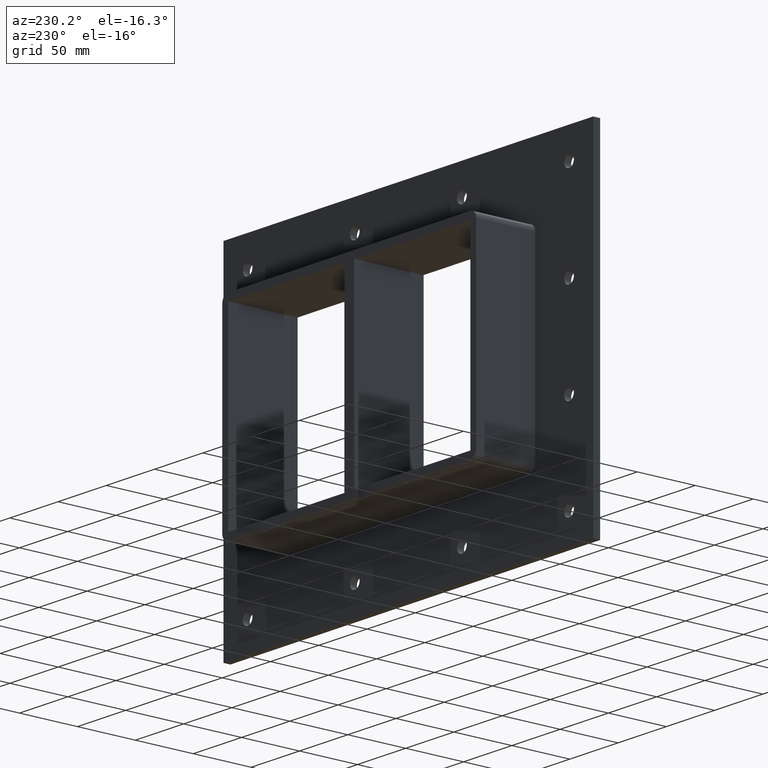
[diagram: clean part render]
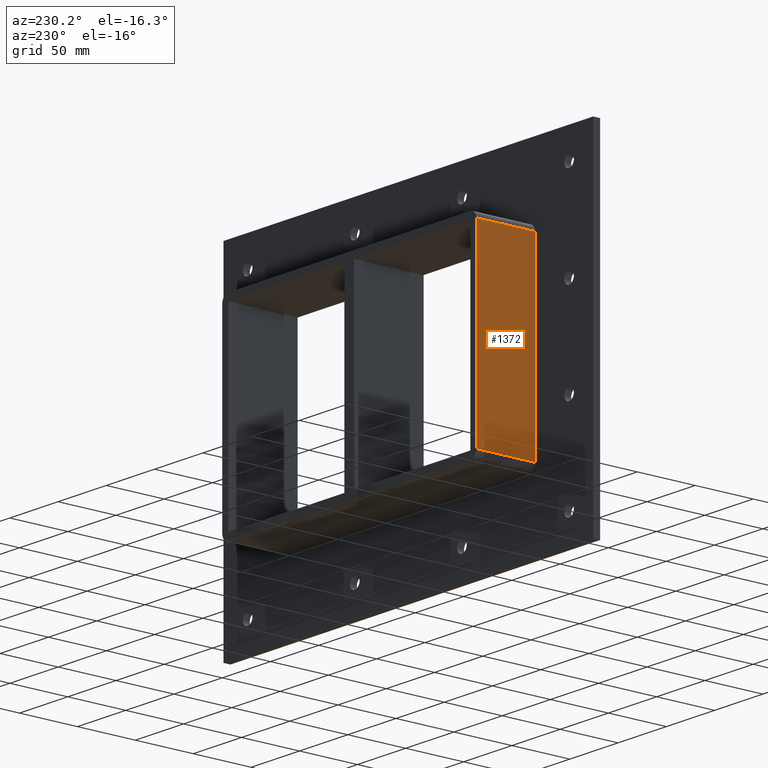
[diagram: same view with one face highlighted and labeled with its STEP entity id]
A machine part, auxiliary view. The second image highlights one B-rep face of the part: STEP entity #1372.
In plain terms, the highlighted planar face has unit normal (-1, 0, 0).
Its self-contained STEP definition (entity closure, byte-faithful):
#685=CARTESIAN_POINT('',(-131.5,6.000000000000001,-79.750000000000028));
#686=VERTEX_POINT('',#685);
#736=CARTESIAN_POINT('',(-131.5,6.000000000000001,79.750000000000028));
#737=VERTEX_POINT('',#736);
#745=CARTESIAN_POINT('',(-131.5,6.000000000000001,-79.750000000000028));
#746=DIRECTION('',(0.0,0.0,1.0));
#747=VECTOR('',#746,159.50000000000006);
#748=LINE('',#745,#747);
#749=EDGE_CURVE('',#686,#737,#748,.T.);
#1330=CARTESIAN_POINT('',(-131.5,57.0,-79.750000000000028));
#1331=VERTEX_POINT('',#1330);
#1332=CARTESIAN_POINT('',(-131.5,6.000000000000001,-79.750000000000028));
#1333=DIRECTION('',(0.0,1.0,0.0));
#1334=VECTOR('',#1333,51.0);
#1335=LINE('',#1332,#1334);
#1336=EDGE_CURVE('',#686,#1331,#1335,.T.);
#1349=CARTESIAN_POINT('',(-131.5,0.0,-85.750000000000028));
#1350=DIRECTION('',(-1.0,0.0,0.0));
#1351=DIRECTION('',(0.0,0.0,1.0));
#1352=AXIS2_PLACEMENT_3D('',#1349,#1350,#1351);
#1353=PLANE('',#1352);
#1354=ORIENTED_EDGE('',*,*,#749,.T.);
#1355=CARTESIAN_POINT('',(-131.5,57.0,79.750000000000014));
#1356=VERTEX_POINT('',#1355);
#1357=CARTESIAN_POINT('',(-131.5,57.0,79.750000000000028));
#1358=DIRECTION('',(0.0,-1.0,0.0));
#1359=VECTOR('',#1358,51.0);
#1360=LINE('',#1357,#1359);
#1361=EDGE_CURVE('',#1356,#737,#1360,.T.);
#1362=ORIENTED_EDGE('',*,*,#1361,.F.);
#1363=CARTESIAN_POINT('',(-131.5,57.0,-79.750000000000028));
#1364=DIRECTION('',(0.0,0.0,1.0));
#1365=VECTOR('',#1364,159.50000000000006);
#1366=LINE('',#1363,#1365);
#1367=EDGE_CURVE('',#1331,#1356,#1366,.T.);
#1368=ORIENTED_EDGE('',*,*,#1367,.F.);
#1369=ORIENTED_EDGE('',*,*,#1336,.F.);
#1370=EDGE_LOOP('',(#1354,#1362,#1368,#1369));
#1371=FACE_OUTER_BOUND('',#1370,.T.);
#1372=ADVANCED_FACE('',(#1371),#1353,.T.);